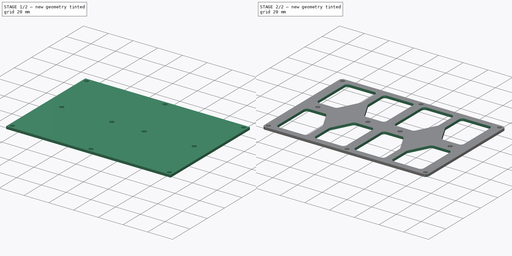
[diagram: build sequence overview — one tinted view per stage of 2, left to right]
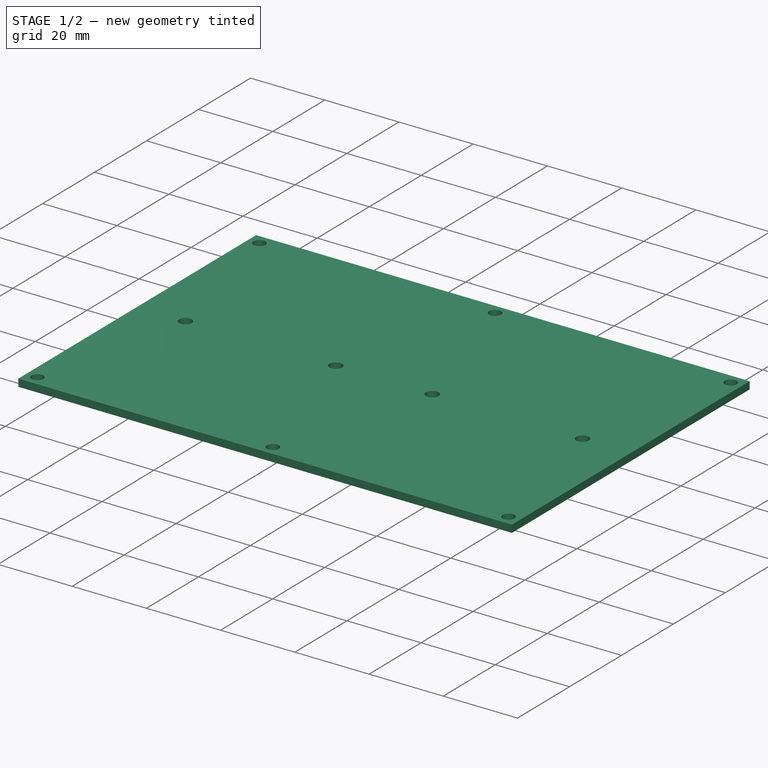
[diagram: stage 1 of 2 — iso view after this stage's code; geometry added in this stage tinted green]
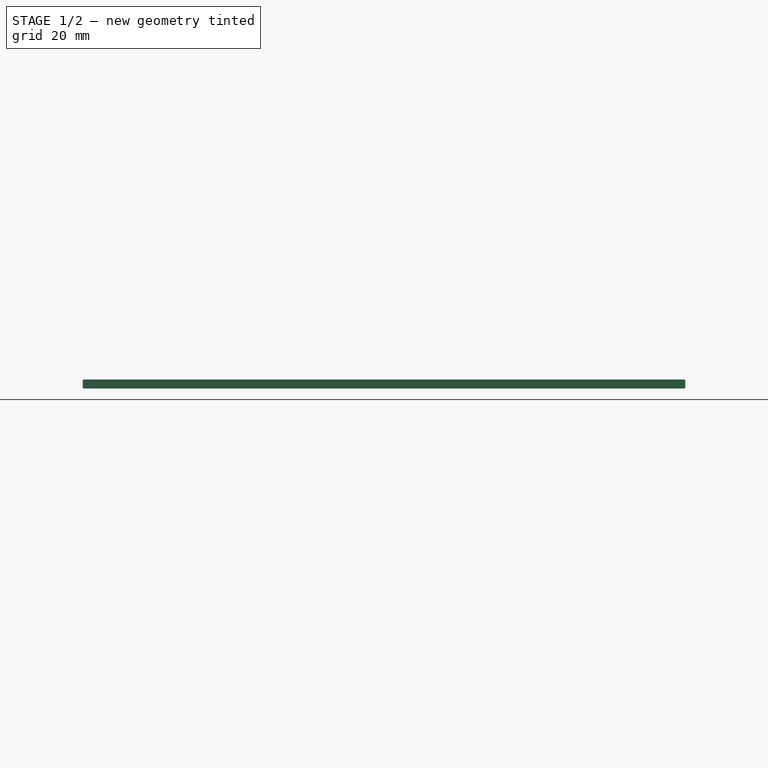
[diagram: stage 1 of 2 — front view after this stage's code; geometry added in this stage tinted green]
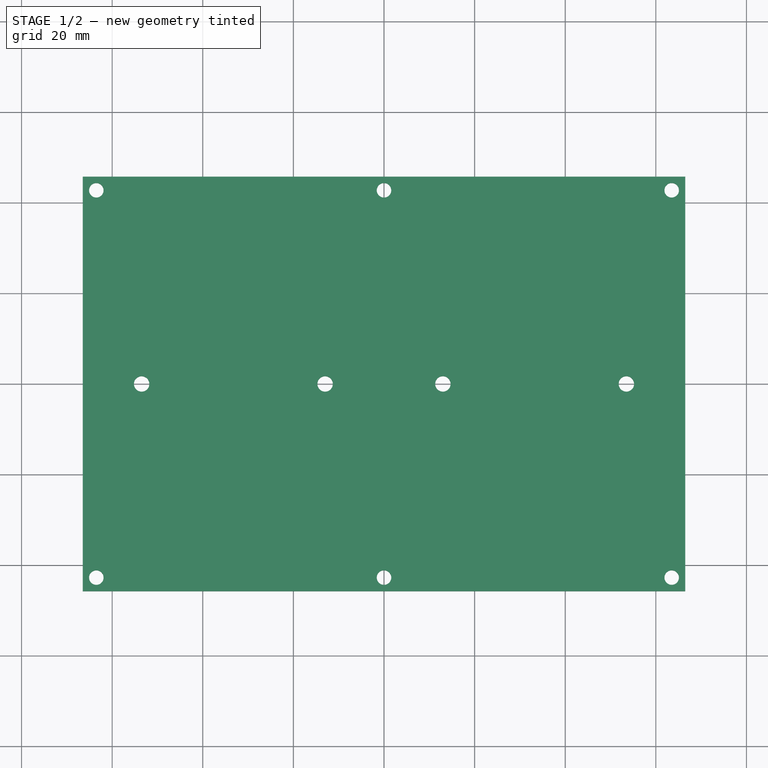
[diagram: stage 1 of 2 — top view after this stage's code; geometry added in this stage tinted green]
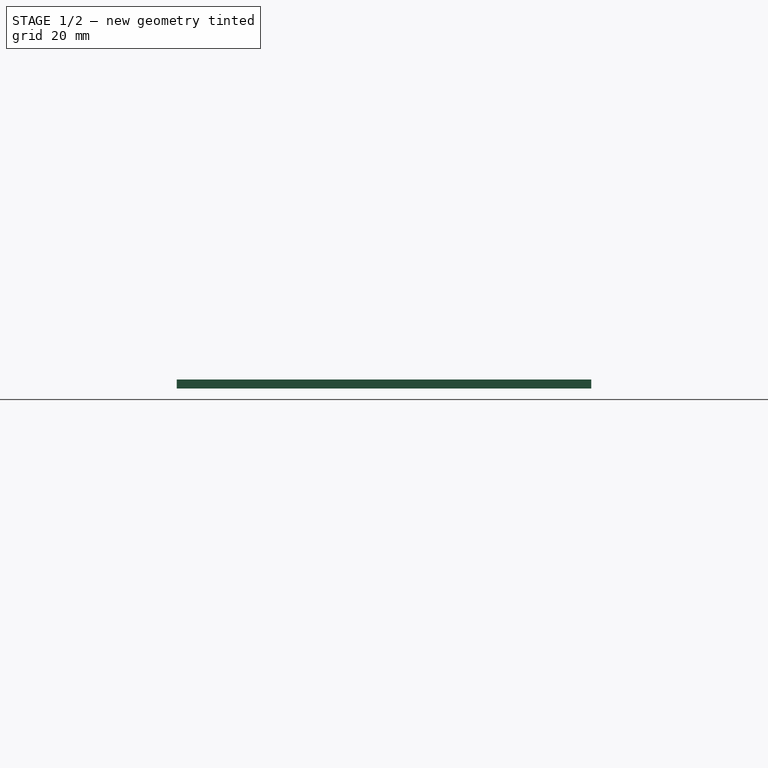
[diagram: stage 1 of 2 — right view after this stage's code; geometry added in this stage tinted green]
FCSTD DOCUMENT  (FreeCAD 1.0R39109 (Git))
Label: bathold_support
License: All rights reserved
LicenseURL: http://en.wikipedia.org/wiki/All_rights_reserved
objects: Sketcher::SketchObject×3, PartDesign::Pocket×2, PartDesign::Pad×1, PartDesign::Fillet×1, PartDesign::Body×1
note: 19 computed .brp shape members not serialized (recipe doc carries the construction recipe); baked Part::Feature solids carry a one-line shape summary decoded from their .brp

FEATURE [Sketcher::SketchObject] Sketch
  ArcFitTolerance = 1e-06
  AttachmentSupport = -> [XY_Plane]
  FullyConstrained = true
  MakeInternals = false
  MapMode = 5
  sketch-geometry (11):
    g0: LineSegment StartX=-66.5 StartY=45.75 StartZ=0 EndX=-66.5 EndY=-45.75 EndZ=0
    g1: LineSegment StartX=-66.5 StartY=-45.75 StartZ=0 EndX=66.5 EndY=-45.75 EndZ=0
    g2: LineSegment StartX=66.5 StartY=-45.75 StartZ=0 EndX=66.5 EndY=45.75 EndZ=0
    g3: LineSegment StartX=66.5 StartY=45.75 StartZ=0 EndX=-66.5 EndY=45.75 EndZ=0
    g4: GeomPoint [constr] X=0 Y=0 Z=0
    g5: Circle CenterX=-63.5 CenterY=42.75 CenterZ=0 NormalX=0 NormalY=0 NormalZ=1 AngleXU=0 Radius=1.6
    g6: Circle CenterX=0 CenterY=42.75 CenterZ=0 NormalX=0 NormalY=0 NormalZ=1 AngleXU=0 Radius=1.6
    g7: Circle CenterX=63.5 CenterY=42.75 CenterZ=0 NormalX=0 NormalY=0 NormalZ=1 AngleXU=0 Radius=1.6
    g8: Circle CenterX=0 CenterY=-42.75 CenterZ=0 NormalX=0 NormalY=0 NormalZ=1 AngleXU=0 Radius=1.6
    g9: Circle CenterX=63.5 CenterY=-42.75 CenterZ=0 NormalX=0 NormalY=0 NormalZ=1 AngleXU=0 Radius=1.6
    g10: Circle CenterX=-63.5 CenterY=-42.75 CenterZ=0 NormalX=0 NormalY=0 NormalZ=1 AngleXU=0 Radius=1.6
  constraints (27):
    c: Coincident(g0,g1)
    c: Coincident(g1,g2)
    c: Coincident(g2,g3)
    c: Coincident(g3,g0)
    c: Vertical(g0)
    c: Vertical(g2)
    c: Horizontal(g1)
    c: Horizontal(g3)
    c: Symmetric(g2,g0,g4)
    c: Coincident(g4,g-1)
    c: DistanceX(g3,g3) = 133
    c: DistanceY(g2,g2) = 91.5
    c: PointOnObject(g6,g-2)
    c: Horizontal(g7,g6)
    c: Equal(g5,g6)
    c: Equal(g6,g7)
    c: Radius(g7) = 1.6
    c: DistanceY(g7,g2) = 3
    c: DistanceX(g7,g2) = 3
    c: Symmetric(g7,g5,g6)
    c: Equal(g8,g9)
    c: Radius(g9) = 1.6
    c: Equal(g10,g8)
    c: Symmetric(g10,g5,g-1)
    c: Symmetric(g9,g7,g-1)
    c: Horizontal(g8,g9)
    c: PointOnObject(g8,g-2)
FEATURE [PartDesign::Pad] Pad  label="BasePad"
  Direction = (0,0,1)
  Length = 2
  Length2 = 10
  Profile = -> Sketch
  ReferenceAxis = -> Sketch [N_Axis]
  Refine = true
  Suppressed = false
  Type = 0
FEATURE [Sketcher::SketchObject] Sketch001
  ArcFitTolerance = 1e-06
  AttachmentSupport = -> [Pad]
  ExternalGeometry = -> [Pad]
  FullyConstrained = true
  MakeInternals = false
  MapMode = 5
  Placement = pos=(0,0,2) rot=(0,0,1;0rad)
  sketch-geometry (20):
    g0: LineSegment [constr] StartX=2.5 StartY=35.75 StartZ=0 EndX=2.5 EndY=-35.75 EndZ=0
    g1: LineSegment [constr] StartX=2.5 StartY=-35.75 StartZ=0 EndX=64 EndY=-35.75 EndZ=0
    g2: LineSegment [constr] StartX=64 StartY=-35.75 StartZ=0 EndX=64 EndY=35.75 EndZ=0
    g3: LineSegment [constr] StartX=64 StartY=35.75 StartZ=0 EndX=2.5 EndY=35.75 EndZ=0
    g4: GeomPoint [constr] X=33.25 Y=0 Z=0
    g5: Circle CenterX=13 CenterY=0 CenterZ=0 NormalX=0 NormalY=0 NormalZ=1 AngleXU=0 Radius=1.7
    g6: Circle CenterX=53.5 CenterY=0 CenterZ=0 NormalX=0 NormalY=0 NormalZ=1 AngleXU=0 Radius=1.7
    g7: GeomPoint [constr] X=6.3e-15 Y=45.75 Z=0
    g8: LineSegment [constr] StartX=6.3e-15 StartY=45.75 StartZ=0 EndX=66.5 EndY=45.75 EndZ=0
    g9: GeomPoint X=33.25 Y=45.75 Z=0
    g10: LineSegment [constr] StartX=-2.5 StartY=35.75 StartZ=0 EndX=-2.5 EndY=-35.75 EndZ=0
    g11: LineSegment [constr] StartX=-2.5 StartY=-35.75 StartZ=0 EndX=-64 EndY=-35.75 EndZ=0
    g12: LineSegment [constr] StartX=-64 StartY=-35.75 StartZ=0 EndX=-64 EndY=35.75 EndZ=0
    g13: LineSegment [constr] StartX=-64 StartY=35.75 StartZ=0 EndX=-2.5 EndY=35.75 EndZ=0
    g14: GeomPoint [constr] X=-33.25 Y=1.318e-13 Z=0
    g15: Circle CenterX=-13 CenterY=0 CenterZ=0 NormalX=0 NormalY=0 NormalZ=1 AngleXU=0 Radius=1.7
    g16: Circle CenterX=-53.5 CenterY=0 CenterZ=0 NormalX=0 NormalY=0 NormalZ=1 AngleXU=0 Radius=1.7
    g17: GeomPoint [constr] X=-2.6e-15 Y=45.75 Z=0
    g18: LineSegment [constr] StartX=-2.6e-15 StartY=45.75 StartZ=0 EndX=-66.5 EndY=45.75 EndZ=0
    g19: GeomPoint X=-33.25 Y=45.75 Z=0
  constraints (43):
    c: Coincident(g0,g1)
    c: Coincident(g1,g2)
    c: Coincident(g2,g3)
    c: Coincident(g3,g0)
    c: Vertical(g0)
    c: Vertical(g2)
    c: Horizontal(g1)
    c: Horizontal(g3)
    c: Symmetric(g2,g0,g4)
    c: PointOnObject(g4,g-1)
    c: PointOnObject(g6,g-1)
    c: PointOnObject(g5,g-1)
    c: Equal(g5,g6)
    c: Radius(g5) = 1.7
    c: DistanceX(g6,g2) = 10.5
    c: DistanceX(g0,g5) = 10.5
    c: DistanceX(g3,g3) = 61.5
    c: DistanceY(g2,g2) = 71.5
    c: Symmetric(g-3,g-3,g7)
    c: Coincident(g8,g7)
    c: Coincident(g8,g-3)
    c: Symmetric(g8,g8,g9)
    c: Vertical(g9,g4)
    c: Coincident(g10,g11)
    c: Coincident(g11,g12)
    c: Coincident(g12,g13)
    c: Coincident(g13,g10)
    c: Vertical(g10)
    c: Vertical(g12)
    c: Horizontal(g11)
    c: Horizontal(g13)
    c: Symmetric(g12,g10,g14)
    c: Equal(g15,g16)
    c: Radius(g15) = 1.7
    c: Coincident(g18,g17)
    c: Symmetric(g18,g18,g19)
    c: Symmetric(g14,g4,g-1)
    c: Symmetric(g16,g6,g-1)
    c: Coincident(g-3,g18)
    c: Horizontal(g18)
    c: Equal(g18,g8)
    c: Symmetric(g12,g1,g-1)
    c: Symmetric(g15,g5,g-1)
FEATURE [PartDesign::Pocket] Pocket  label="ScrewPocket"
  BaseFeature = -> Pad
  Direction = (0,0,-1)
  Length = 5
  Length2 = 5
  Profile = -> Sketch001
  ReferenceAxis = -> Sketch001 [N_Axis]
  Refine = true
  Suppressed = false
  Type = 1
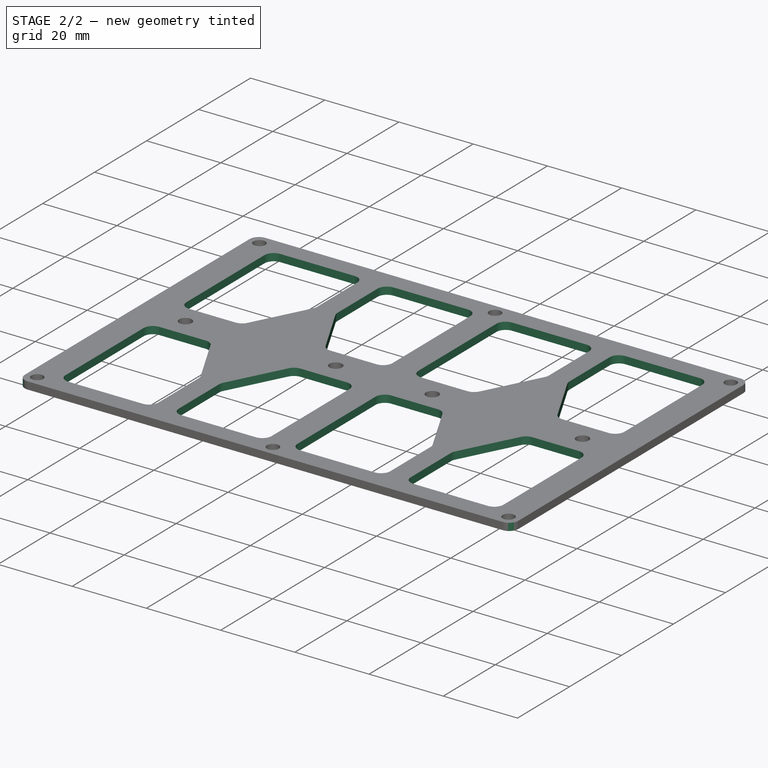
[diagram: stage 2 of 2 — iso view after this stage's code; geometry added in this stage tinted green]
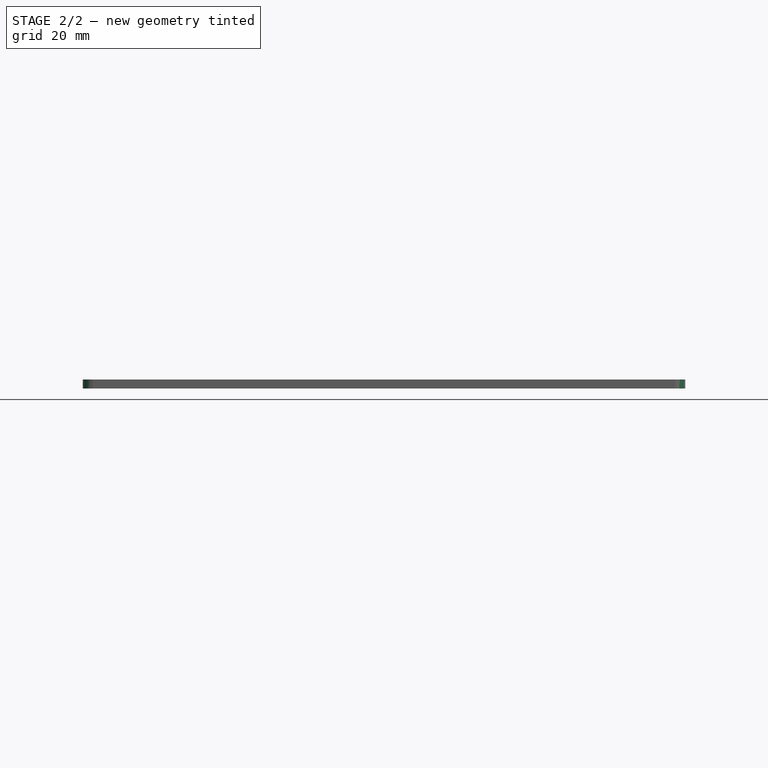
[diagram: stage 2 of 2 — front view after this stage's code; geometry added in this stage tinted green]
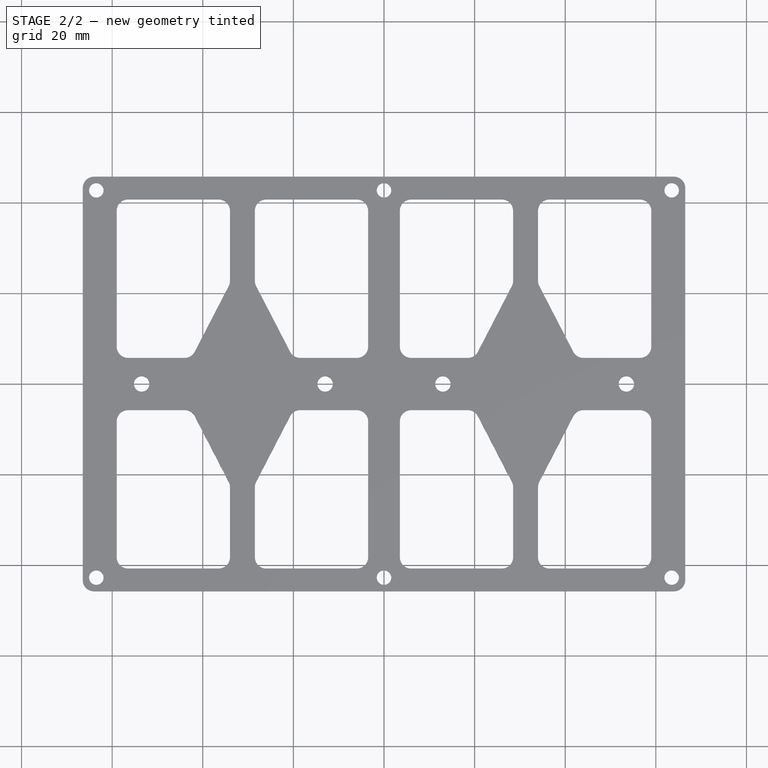
[diagram: stage 2 of 2 — top view after this stage's code; geometry added in this stage tinted green]
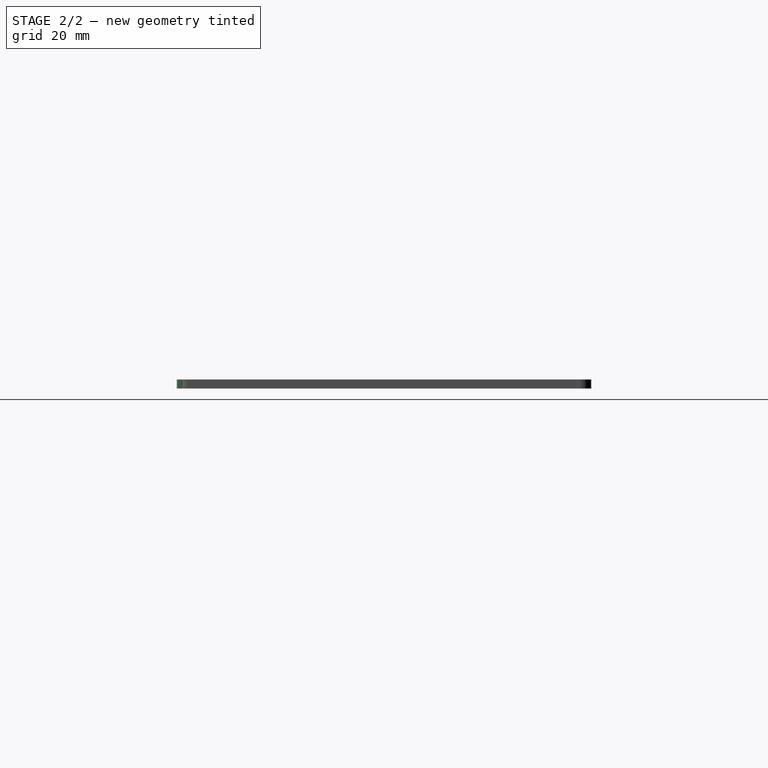
[diagram: stage 2 of 2 — right view after this stage's code; geometry added in this stage tinted green]
FEATURE [Sketcher::SketchObject] Sketch002
  ArcFitTolerance = 1e-06
  AttachmentSupport = -> [Pocket]
  ExternalGeometry = -> [Pocket]
  FullyConstrained = false
  MakeInternals = false
  MapMode = 5
  Placement = pos=(0,0,2) rot=(0,0,1;0rad)
  sketch-geometry (136):
    g0: LineSegment StartX=-59 StartY=38.25 StartZ=0 EndX=-59 EndY=8.25 EndZ=0
    g1: LineSegment StartX=-56.5 StartY=5.75 StartZ=0 EndX=-44 EndY=5.75 EndZ=0
    g2: LineSegment StartX=-41.7795 StartY=7.10144 StartZ=0 EndX=-34.2795 EndY=21.6014 EndZ=0
    g3: LineSegment StartX=-34 StartY=22.75 StartZ=0 EndX=-34 EndY=38.25 EndZ=0
    g4: LineSegment StartX=-36.5 StartY=40.75 StartZ=0 EndX=-56.5 EndY=40.75 EndZ=0
    g5: LineSegment StartX=-28.5 StartY=38.25 StartZ=0 EndX=-28.5 EndY=22.75 EndZ=0
    g6: LineSegment StartX=-28.2205 StartY=21.6014 StartZ=0 EndX=-20.7205 EndY=7.10144 EndZ=0
    g7: LineSegment StartX=-18.5 StartY=5.75 StartZ=0 EndX=-6 EndY=5.75 EndZ=0
    g8: LineSegment StartX=-3.5 StartY=8.25 StartZ=0 EndX=-3.5 EndY=38.25 EndZ=0
    g9: LineSegment StartX=-6 StartY=40.75 StartZ=0 EndX=-26 EndY=40.75 EndZ=0
    g10: ArcOfCircle CenterX=-56.5 CenterY=8.25 CenterZ=0 NormalX=0 NormalY=0 NormalZ=1 AngleXU=0 Radius=2.5 StartAngle=3.14159 EndAngle=4.71239
    g11: GeomPoint [constr] X=-59 Y=5.75 Z=0
    g12: ArcOfCircle CenterX=-44 CenterY=8.25 CenterZ=0 NormalX=0 NormalY=0 NormalZ=1 AngleXU=0 Radius=2.5 StartAngle=4.71239 EndAngle=5.80584
    g13: GeomPoint [constr] X=-42.4785 Y=5.75 Z=0
    g14: ArcOfCircle CenterX=-36.5 CenterY=22.75 CenterZ=0 NormalX=0 NormalY=0 NormalZ=1 AngleXU=0 Radius=2.5 StartAngle=5.80584 EndAngle=6.28319
    g15: GeomPoint [constr] X=-34 Y=22.1417 Z=0
    g16: ArcOfCircle CenterX=-36.5 CenterY=38.25 CenterZ=0 NormalX=0 NormalY=0 NormalZ=1 AngleXU=0 Radius=2.5 StartAngle=0 EndAngle=1.5708
    g17: GeomPoint [constr] X=-34 Y=40.75 Z=0
    g18: ArcOfCircle CenterX=-56.5 CenterY=38.25 CenterZ=0 NormalX=0 NormalY=0 NormalZ=1 AngleXU=0 Radius=2.5 StartAngle=1.5708 EndAngle=3.14159
    g19: GeomPoint [constr] X=-59 Y=40.75 Z=0
    g20: ArcOfCircle CenterX=-26 CenterY=38.25 CenterZ=0 NormalX=0 NormalY=0 NormalZ=1 AngleXU=0 Radius=2.5 StartAngle=1.5708 EndAngle=3.14159
    g21: GeomPoint [constr] X=-28.5 Y=40.75 Z=0
    g22: ArcOfCircle CenterX=-26 CenterY=22.75 CenterZ=0 NormalX=0 NormalY=0 NormalZ=1 AngleXU=0 Radius=2.5 StartAngle=3.14159 EndAngle=3.61894
    g23: GeomPoint [constr] X=-28.5 Y=22.1417 Z=0
    g24: ArcOfCircle CenterX=-6 CenterY=38.25 CenterZ=0 NormalX=0 NormalY=0 NormalZ=1 AngleXU=0 Radius=2.5 StartAngle=7e-16 EndAngle=1.5708
    g25: GeomPoint [constr] X=-3.5 Y=40.75 Z=0
    g26: ArcOfCircle CenterX=-18.5 CenterY=8.25 CenterZ=0 NormalX=0 NormalY=0 NormalZ=1 AngleXU=0 Radius=2.5 StartAngle=3.61894 EndAngle=4.71239
    g27: GeomPoint [constr] X=-20.0215 Y=5.75 Z=0
    g28: ArcOfCircle CenterX=-6 CenterY=8.25 CenterZ=0 NormalX=0 NormalY=0 NormalZ=1 AngleXU=0 Radius=2.5 StartAngle=4.71239 EndAngle=6.28319
    g29: GeomPoint [constr] X=-3.5 Y=5.75 Z=0
    g30: LineSegment [constr] StartX=-59 StartY=38.25 StartZ=0 EndX=-34 EndY=38.25 EndZ=0
    g31: LineSegment [constr] StartX=-28.5 StartY=38.25 StartZ=0 EndX=-3.5 EndY=38.25 EndZ=0
    g32: LineSegment [constr] StartX=-56.5 StartY=40.75 StartZ=0 EndX=-56.5 EndY=5.75 EndZ=0
    g33: LineSegment [constr] StartX=-6 StartY=5.75 StartZ=0 EndX=-6 EndY=40.75 EndZ=0
    g34: LineSegment StartX=59 StartY=-38.25 StartZ=0 EndX=59 EndY=-8.25 EndZ=0
    g35: LineSegment StartX=56.5 StartY=-5.75 StartZ=0 EndX=44 EndY=-5.75 EndZ=0
    g36: LineSegment StartX=41.7795 StartY=-7.10144 StartZ=0 EndX=34.2795 EndY=-21.6014 EndZ=0
    g37: LineSegment StartX=34 StartY=-22.75 StartZ=0 EndX=34 EndY=-38.25 EndZ=0
    g38: LineSegment StartX=36.5 StartY=-40.75 StartZ=0 EndX=56.5 EndY=-40.75 EndZ=0
    g39: LineSegment StartX=28.5 StartY=-38.25 StartZ=0 EndX=28.5 EndY=-22.75 EndZ=0
    g40: LineSegment StartX=28.2205 StartY=-21.6014 StartZ=0 EndX=20.7205 EndY=-7.10144 EndZ=0
    g41: LineSegment StartX=18.5 StartY=-5.75 StartZ=0 EndX=6 EndY=-5.75 EndZ=0
    g42: LineSegment StartX=3.5 StartY=-8.25 StartZ=0 EndX=3.5 EndY=-38.25 EndZ=0
    g43: LineSegment StartX=6 StartY=-40.75 StartZ=0 EndX=26 EndY=-40.75 EndZ=0
    g44: ArcOfCircle CenterX=56.5 CenterY=-8.25 CenterZ=0 NormalX=0 NormalY=0 NormalZ=1 AngleXU=0 Radius=2.5 StartAngle=0 EndAngle=1.5708
    g45: GeomPoint [constr] X=59 Y=-5.75 Z=0
    g46: ArcOfCircle CenterX=44 CenterY=-8.25 CenterZ=0 NormalX=0 NormalY=0 NormalZ=1 AngleXU=0 Radius=2.5 StartAngle=1.5708 EndAngle=2.66425
    g47: GeomPoint [constr] X=42.4785 Y=-5.75 Z=0
    g48: ArcOfCircle CenterX=36.5 CenterY=-22.75 CenterZ=0 NormalX=0 NormalY=0 NormalZ=1 AngleXU=0 Radius=2.5 StartAngle=2.66425 EndAngle=3.14159
    g49: GeomPoint [constr] X=34 Y=-22.1417 Z=0
    g50: ArcOfCircle CenterX=36.5 CenterY=-38.25 CenterZ=0 NormalX=0 NormalY=0 NormalZ=1 AngleXU=0 Radius=2.5 StartAngle=3.14159 EndAngle=4.71239
    g51: GeomPoint [constr] X=34 Y=-40.75 Z=0
    g52: ArcOfCircle CenterX=56.5 CenterY=-38.25 CenterZ=0 NormalX=0 NormalY=0 NormalZ=1 AngleXU=0 Radius=2.5 StartAngle=4.71239 EndAngle=6.28319
    g53: GeomPoint [constr] X=59 Y=-40.75 Z=0
    g54: ArcOfCircle CenterX=26 CenterY=-38.25 CenterZ=0 NormalX=0 NormalY=0 NormalZ=1 AngleXU=0 Radius=2.5 StartAngle=4.71239 EndAngle=6.28319
    g55: GeomPoint [constr] X=28.5 Y=-40.75 Z=0
    g56: ArcOfCircle CenterX=26 CenterY=-22.75 CenterZ=0 NormalX=0 NormalY=0 NormalZ=1 AngleXU=0 Radius=2.5 StartAngle=0 EndAngle=0.477345
    g57: GeomPoint [constr] X=28.5 Y=-22.1417 Z=0
    g58: ArcOfCircle CenterX=6 CenterY=-38.25 CenterZ=0 NormalX=0 NormalY=0 NormalZ=1 AngleXU=0 Radius=2.5 StartAngle=3.14159 EndAngle=4.71239
    g59: GeomPoint [constr] X=3.5 Y=-40.75 Z=0
    g60: ArcOfCircle CenterX=18.5 CenterY=-8.25 CenterZ=0 NormalX=0 NormalY=0 NormalZ=1 AngleXU=0 Radius=2.5 StartAngle=0.477345 EndAngle=1.5708
    g61: GeomPoint [constr] X=20.0215 Y=-5.75 Z=0
    g62: ArcOfCircle CenterX=6 CenterY=-8.25 CenterZ=0 NormalX=0 NormalY=0 NormalZ=1 AngleXU=0 Radius=2.5 StartAngle=1.5708 EndAngle=3.14159
    g63: GeomPoint [constr] X=3.5 Y=-5.75 Z=0
    g64: LineSegment [constr] StartX=59 StartY=-38.25 StartZ=0 EndX=34 EndY=-38.25 EndZ=0
    g65: LineSegment [constr] StartX=28.5 StartY=-38.25 StartZ=0 EndX=3.5 EndY=-38.25 EndZ=0
    g66: LineSegment [constr] StartX=56.5 StartY=-40.75 StartZ=0 EndX=56.5 EndY=-5.75 EndZ=0
    g67: LineSegment [constr] StartX=6 StartY=-5.75 StartZ=0 EndX=6 EndY=-40.75 EndZ=0
    g68: LineSegment StartX=59 StartY=38.25 StartZ=0 EndX=59 EndY=8.25 EndZ=0
    g69: LineSegment StartX=56.5 StartY=5.75 StartZ=0 EndX=44 EndY=5.75 EndZ=0
    g70: LineSegment StartX=41.7795 StartY=7.10144 StartZ=0 EndX=34.2795 EndY=21.6014 EndZ=0
    g71: LineSegment StartX=34 StartY=22.75 StartZ=0 EndX=34 EndY=38.25 EndZ=0
    g72: LineSegment StartX=36.5 StartY=40.75 StartZ=0 EndX=56.5 EndY=40.75 EndZ=0
    g73: LineSegment StartX=28.5 StartY=38.25 StartZ=0 EndX=28.5 EndY=22.75 EndZ=0
    g74: LineSegment StartX=28.2205 StartY=21.6014 StartZ=0 EndX=20.7205 EndY=7.10144 EndZ=0
    g75: LineSegment StartX=18.5 StartY=5.75 StartZ=0 EndX=6 EndY=5.75 EndZ=0
    g76: LineSegment StartX=3.5 StartY=8.25 StartZ=0 EndX=3.5 EndY=38.25 EndZ=0
    g77: LineSegment StartX=6 StartY=40.75 StartZ=0 EndX=26 EndY=40.75 EndZ=0
    g78: ArcOfCircle CenterX=56.5 CenterY=8.25 CenterZ=0 NormalX=0 NormalY=0 NormalZ=1 AngleXU=0 Radius=2.5 StartAngle=4.71239 EndAngle=6.28319
    g79: GeomPoint [constr] X=59 Y=5.75 Z=0
    g80: ArcOfCircle CenterX=44 CenterY=8.25 CenterZ=0 NormalX=0 NormalY=0 NormalZ=1 AngleXU=0 Radius=2.5 StartAngle=3.61894 EndAngle=4.71239
    g81: GeomPoint [constr] X=42.4785 Y=5.75 Z=0
    g82: ArcOfCircle CenterX=36.5 CenterY=22.75 CenterZ=0 NormalX=0 NormalY=0 NormalZ=1 AngleXU=0 Radius=2.5 StartAngle=3.14159 EndAngle=3.61894
    g83: GeomPoint [constr] X=34 Y=22.1417 Z=0
    g84: ArcOfCircle CenterX=36.5 CenterY=38.25 CenterZ=0 NormalX=0 NormalY=0 NormalZ=1 AngleXU=0 Radius=2.5 StartAngle=1.5708 EndAngle=3.14159
    g85: GeomPoint [constr] X=34 Y=40.75 Z=0
    g86: ArcOfCircle CenterX=56.5 CenterY=38.25 CenterZ=0 NormalX=0 NormalY=0 NormalZ=1 AngleXU=0 Radius=2.5 StartAngle=0 EndAngle=1.5708
    g87: GeomPoint [constr] X=59 Y=40.75 Z=0
    g88: ArcOfCircle CenterX=26 CenterY=38.25 CenterZ=0 NormalX=0 NormalY=0 NormalZ=1 AngleXU=0 Radius=2.5 StartAngle=0 EndAngle=1.5708
    g89: GeomPoint [constr] X=28.5 Y=40.75 Z=0
    g90: ArcOfCircle CenterX=26 CenterY=22.75 CenterZ=0 NormalX=0 NormalY=0 NormalZ=1 AngleXU=0 Radius=2.5 StartAngle=5.80584 EndAngle=6.28319
    g91: GeomPoint [constr] X=28.5 Y=22.1417 Z=0
    g92: ArcOfCircle CenterX=6 CenterY=38.25 CenterZ=0 NormalX=0 NormalY=0 NormalZ=1 AngleXU=0 Radius=2.5 StartAngle=1.5708 EndAngle=3.14159
    g93: GeomPoint [constr] X=3.5 Y=40.75 Z=0
    g94: ArcOfCircle CenterX=18.5 CenterY=8.25 CenterZ=0 NormalX=0 NormalY=0 NormalZ=1 AngleXU=0 Radius=2.5 StartAngle=4.71239 EndAngle=5.80584
    g95: GeomPoint [constr] X=20.0215 Y=5.75 Z=0
    g96: ArcOfCircle CenterX=6 CenterY=8.25 CenterZ=0 NormalX=0 NormalY=0 NormalZ=1 AngleXU=0 Radius=2.5 StartAngle=3.14159 EndAngle=4.71239
    g97: GeomPoint [constr] X=3.5 Y=5.75 Z=0
    g98: LineSegment [constr] StartX=59 StartY=38.25 StartZ=0 EndX=34 EndY=38.25 EndZ=0
    g99: LineSegment [constr] StartX=28.5 StartY=38.25 StartZ=0 EndX=3.5 EndY=38.25 EndZ=0
    g100: LineSegment [constr] StartX=56.5 StartY=40.75 StartZ=0 EndX=56.5 EndY=5.75 EndZ=0
    g101: LineSegment [constr] StartX=6 StartY=5.75 StartZ=0 EndX=6 EndY=40.75 EndZ=0
    g102: LineSegment StartX=-59 StartY=-38.25 StartZ=0 EndX=-59 EndY=-8.25 EndZ=0
    g103: LineSegment StartX=-56.5 StartY=-5.75 StartZ=0 EndX=-44 EndY=-5.75 EndZ=0
    g104: LineSegment StartX=-41.7795 StartY=-7.10144 StartZ=0 EndX=-34.2795 EndY=-21.6014 EndZ=0
    g105: LineSegment StartX=-34 StartY=-22.75 StartZ=0 EndX=-34 EndY=-38.25 EndZ=0
    g106: LineSegment StartX=-36.5 StartY=-40.75 StartZ=0 EndX=-56.5 EndY=-40.75 EndZ=0
    g107: LineSegment StartX=-28.5 StartY=-38.25 StartZ=0 EndX=-28.5 EndY=-22.75 EndZ=0
    g108: LineSegment StartX=-28.2205 StartY=-21.6014 StartZ=0 EndX=-20.7205 EndY=-7.10144 EndZ=0
    g109: LineSegment StartX=-18.5 StartY=-5.75 StartZ=0 EndX=-6 EndY=-5.75 EndZ=0
    g110: LineSegment StartX=-3.5 StartY=-8.25 StartZ=0 EndX=-3.5 EndY=-38.25 EndZ=0
    g111: LineSegment StartX=-6 StartY=-40.75 StartZ=0 EndX=-26 EndY=-40.75 EndZ=0
    g112: ArcOfCircle CenterX=-56.5 CenterY=-8.25 CenterZ=0 NormalX=0 NormalY=0 NormalZ=1 AngleXU=0 Radius=2.5 StartAngle=1.5708 EndAngle=3.14159
    g113: GeomPoint [constr] X=-59 Y=-5.75 Z=0
    g114: ArcOfCircle CenterX=-44 CenterY=-8.25 CenterZ=0 NormalX=0 NormalY=0 NormalZ=1 AngleXU=0 Radius=2.5 StartAngle=0.477345 EndAngle=1.5708
    g115: GeomPoint [constr] X=-42.4785 Y=-5.75 Z=0
    g116: ArcOfCircle CenterX=-36.5 CenterY=-22.75 CenterZ=0 NormalX=0 NormalY=0 NormalZ=1 AngleXU=0 Radius=2.5 StartAngle=0 EndAngle=0.477345
    g117: GeomPoint [constr] X=-34 Y=-22.1417 Z=0
    g118: ArcOfCircle CenterX=-36.5 CenterY=-38.25 CenterZ=0 NormalX=0 NormalY=0 NormalZ=1 AngleXU=0 Radius=2.5 StartAngle=4.71239 EndAngle=6.28319
    g119: GeomPoint [constr] X=-34 Y=-40.75 Z=0
    g120: ArcOfCircle CenterX=-56.5 CenterY=-38.25 CenterZ=0 NormalX=0 NormalY=0 NormalZ=1 AngleXU=0 Radius=2.5 StartAngle=3.14159 EndAngle=4.71239
    g121: GeomPoint [constr] X=-59 Y=-40.75 Z=0
    g122: ArcOfCircle CenterX=-26 CenterY=-38.25 CenterZ=0 NormalX=0 NormalY=0 NormalZ=1 AngleXU=0 Radius=2.5 StartAngle=3.14159 EndAngle=4.71239
    g123: GeomPoint [constr] X=-28.5 Y=-40.75 Z=0
    g124: ArcOfCircle CenterX=-26 CenterY=-22.75 CenterZ=0 NormalX=0 NormalY=0 NormalZ=1 AngleXU=0 Radius=2.5 StartAngle=2.66425 EndAngle=3.14159
    g125: GeomPoint [constr] X=-28.5 Y=-22.1417 Z=0
    g126: ArcOfCircle CenterX=-6 CenterY=-38.25 CenterZ=0 NormalX=0 NormalY=0 NormalZ=1 AngleXU=0 Radius=2.5 StartAngle=4.71239 EndAngle=6.28319
    g127: GeomPoint [constr] X=-3.5 Y=-40.75 Z=0
    g128: ArcOfCircle CenterX=-18.5 CenterY=-8.25 CenterZ=0 NormalX=0 NormalY=0 NormalZ=1 AngleXU=0 Radius=2.5 StartAngle=1.5708 EndAngle=2.66425
    g129: GeomPoint [constr] X=-20.0215 Y=-5.75 Z=0
    g130: ArcOfCircle CenterX=-6 CenterY=-8.25 CenterZ=0 NormalX=0 NormalY=0 NormalZ=1 AngleXU=0 Radius=2.5 StartAngle=0 EndAngle=1.5708
    g131: GeomPoint [constr] X=-3.5 Y=-5.75 Z=0
    g132: LineSegment [constr] StartX=-59 StartY=-38.25 StartZ=0 EndX=-34 EndY=-38.25 EndZ=0
    g133: LineSegment [constr] StartX=-28.5 StartY=-38.25 StartZ=0 EndX=-3.5 EndY=-38.25 EndZ=0
    g134: LineSegment [constr] StartX=-56.5 StartY=-40.75 StartZ=0 EndX=-56.5 EndY=-5.75 EndZ=0
    g135: LineSegment [constr] StartX=-6 StartY=-5.75 StartZ=0 EndX=-6 EndY=-40.75 EndZ=0
  constraints (282):
    c: Vertical(g0)
    c: Vertical(g3)
    c: Horizontal(g4)
    c: Vertical(g5)
    c: Vertical(g8)
    c: Horizontal(g9)
    c: Horizontal(g1)
    c: Horizontal(g7)
    c: PointOnObject(g11,g0)
    c: PointOnObject(g11,g1)
    c: Tangent(g0,g10) = -1.5708
    c: Tangent(g1,g10) = -1.5708
    c: PointOnObject(g13,g1)
    c: PointOnObject(g13,g2)
    c: Tangent(g1,g12) = -1.5708
    c: Tangent(g2,g12) = -1.5708
    c: PointOnObject(g15,g2)
    c: PointOnObject(g15,g3)
    c: Tangent(g2,g14) = -1.5708
    c: Tangent(g3,g14) = -1.5708
    c: PointOnObject(g17,g3)
    c: PointOnObject(g17,g4)
    c: Tangent(g3,g16) = -1.5708
    c: Tangent(g4,g16) = -1.5708
    c: PointOnObject(g19,g0)
    c: PointOnObject(g19,g4)
    c: Tangent(g0,g18) = -1.5708
    c: Tangent(g4,g18) = -1.5708
    c: PointOnObject(g21,g5)
    c: PointOnObject(g21,g9)
    c: Tangent(g5,g20) = -1.5708
    c: Tangent(g9,g20) = -1.5708
    c: PointOnObject(g23,g5)
    c: PointOnObject(g23,g6)
    c: Tangent(g5,g22) = -1.5708
    c: Tangent(g6,g22) = -1.5708
    c: PointOnObject(g25,g8)
    c: PointOnObject(g25,g9)
    c: Tangent(g8,g24) = -1.5708
    c: Tangent(g9,g24) = -1.5708
    c: PointOnObject(g27,g6)
    c: PointOnObject(g27,g7)
    c: Tangent(g6,g26) = -1.5708
    c: Tangent(g7,g26) = -1.5708
    c: PointOnObject(g29,g7)
    c: PointOnObject(g29,g8)
    c: Tangent(g7,g28) = -1.5708
    c: Tangent(g8,g28) = -1.5708
    c: Horizontal(g27,g13)
    c: Horizontal(g22,g14)
    c: Horizontal(g20,g16)
    c: Equal(g24,g20)
    c: Equal(g20,g16)
    c: Equal(g16,g18)
    c: Equal(g18,g10)
    c: Equal(g10,g12)
    c: Equal(g12,g14)
    c: Equal(g14,g22)
    c: Equal(g22,g26)
    c: Equal(g26,g28)
    c: Radius(g18) = 2.5
    c: DistanceY(g1,g4) = 35
    c: DistanceY(g4,g-3) = 5
    c: DistanceX(g-3,g0) = 7.5
    c: Coincident(g30,g0)
    c: Coincident(g30,g3)
    c: Coincident(g31,g5)
    c: Coincident(g31,g8)
    c: Equal(g31,g30)
    c: Coincident(g32,g4)
    c: Coincident(g32,g1)
    c: Coincident(g33,g7)
    c: Coincident(g33,g9)
    c: DistanceX(g30,g30) = 25
    c: DistanceX(g8,g-1) = 3.5
    c: Equal(g6,g2)
    c: DistanceY(g7,g5) = 17
    c: DistanceX(g1,g3) = 10
    c: Vertical(g34)
    c: Vertical(g37)
    c: Horizontal(g38)
    c: Vertical(g39)
    c: Vertical(g42)
    c: Horizontal(g43)
    c: Horizontal(g35)
    c: Horizontal(g41)
    c: PointOnObject(g45,g34)
    c: PointOnObject(g45,g35)
    c: Tangent(g34,g44) = -1.5708
    c: Tangent(g35,g44) = -1.5708
    c: PointOnObject(g47,g35)
    c: PointOnObject(g47,g36)
    c: Tangent(g35,g46) = -1.5708
    c: Tangent(g36,g46) = -1.5708
    c: PointOnObject(g49,g36)
    c: PointOnObject(g49,g37)
    c: Tangent(g36,g48) = -1.5708
    c: Tangent(g37,g48) = -1.5708
    c: PointOnObject(g51,g37)
    c: PointOnObject(g51,g38)
    c: Tangent(g37,g50) = -1.5708
    c: Tangent(g38,g50) = -1.5708
    c: PointOnObject(g53,g34)
    c: PointOnObject(g53,g38)
    c: Tangent(g34,g52) = -1.5708
    c: Tangent(g38,g52) = -1.5708
    c: PointOnObject(g55,g39)
    c: PointOnObject(g55,g43)
    c: Tangent(g39,g54) = -1.5708
    c: Tangent(g43,g54) = -1.5708
    c: PointOnObject(g57,g39)
    c: PointOnObject(g57,g40)
    c: Tangent(g39,g56) = -1.5708
    c: Tangent(g40,g56) = -1.5708
    c: PointOnObject(g59,g42)
    c: PointOnObject(g59,g43)
    c: Tangent(g42,g58) = -1.5708
    c: Tangent(g43,g58) = -1.5708
    c: PointOnObject(g61,g40)
    c: PointOnObject(g61,g41)
    c: Tangent(g40,g60) = -1.5708
    c: Tangent(g41,g60) = -1.5708
    c: PointOnObject(g63,g41)
    c: PointOnObject(g63,g42)
    c: Tangent(g41,g62) = -1.5708
    c: Tangent(g42,g62) = -1.5708
    c: Equal(g58,g54)
    c: Equal(g54,g50)
    c: Equal(g50,g52)
    c: Equal(g52,g44)
    c: Equal(g44,g46)
    c: Equal(g46,g48)
    c: Equal(g48,g56)
    c: Equal(g56,g60)
    c: Equal(g60,g62)
    c: Radius(g52) = 2.5
    c: Coincident(g64,g34)
    c: Coincident(g64,g37)
    c: Coincident(g65,g39)
    c: Coincident(g65,g42)
    c: Equal(g65,g64)
    c: Coincident(g66,g38)
    c: Coincident(g66,g35)
    c: Coincident(g67,g41)
    c: Coincident(g67,g43)
    c: Equal(g40,g36)
    c: Vertical(g68)
    c: Vertical(g71)
    c: Horizontal(g72)
    c: Vertical(g73)
    c: Vertical(g76)
    c: Horizontal(g77)
    c: Horizontal(g69)
    c: Horizontal(g75)
    c: PointOnObject(g79,g68)
    c: PointOnObject(g79,g69)
    c: Tangent(g68,g78) = 1.5708
    c: Tangent(g69,g78) = 1.5708
    c: PointOnObject(g81,g69)
    c: PointOnObject(g81,g70)
    c: Tangent(g69,g80) = 1.5708
    c: Tangent(g70,g80) = 1.5708
    c: PointOnObject(g83,g70)
    c: PointOnObject(g83,g71)
    c: Tangent(g70,g82) = 1.5708
    c: Tangent(g71,g82) = 1.5708
    c: PointOnObject(g85,g71)
    c: PointOnObject(g85,g72)
    c: Tangent(g71,g84) = 1.5708
    c: Tangent(g72,g84) = 1.5708
    c: PointOnObject(g87,g68)
    c: PointOnObject(g87,g72)
    c: Tangent(g68,g86) = 1.5708
    c: Tangent(g72,g86) = 1.5708
    c: PointOnObject(g89,g73)
    c: PointOnObject(g89,g77)
    c: Tangent(g73,g88) = 1.5708
    c: Tangent(g77,g88) = 1.5708
    c: PointOnObject(g91,g73)
    c: PointOnObject(g91,g74)
    c: Tangent(g73,g90) = 1.5708
    c: Tangent(g74,g90) = 1.5708
    c: PointOnObject(g93,g76)
    c: PointOnObject(g93,g77)
    c: Tangent(g76,g92) = 1.5708
    c: Tangent(g77,g92) = 1.5708
    c: PointOnObject(g95,g74)
    c: PointOnObject(g95,g75)
    c: Tangent(g74,g94) = 1.5708
    c: Tangent(g75,g94) = 1.5708
    c: PointOnObject(g97,g75)
    c: PointOnObject(g97,g76)
    c: Tangent(g75,g96) = 1.5708
    c: Tangent(g76,g96) = 1.5708
    c: Equal(g92,g88)
    c: Equal(g88,g84)
    c: Equal(g84,g86)
    c: Equal(g86,g78)
    c: Equal(g78,g80)
    c: Equal(g80,g82)
    c: Equal(g82,g90)
    c: Equal(g90,g94)
    c: Equal(g94,g96)
    c: Radius(g86) = 2.5
    c: Coincident(g98,g68)
    c: Coincident(g98,g71)
    c: Coincident(g99,g73)
    c: Coincident(g99,g76)
    c: Equal(g99,g98)
    c: Coincident(g100,g72)
    c: Coincident(g100,g69)
    c: Coincident(g101,g75)
    c: Coincident(g101,g77)
    c: Equal(g74,g70)
    c: Vertical(g102)
    c: Vertical(g105)
    c: Horizontal(g106)
    c: Vertical(g107)
    c: Vertical(g110)
    c: Horizontal(g111)
    c: Horizontal(g103)
    c: Horizontal(g109)
    c: PointOnObject(g113,g102)
    c: PointOnObject(g113,g103)
    c: Tangent(g102,g112) = 1.5708
    c: Tangent(g103,g112) = 1.5708
    c: PointOnObject(g115,g103)
    c: PointOnObject(g115,g104)
    c: Tangent(g103,g114) = 1.5708
    c: Tangent(g104,g114) = 1.5708
    c: PointOnObject(g117,g104)
    c: PointOnObject(g117,g105)
    c: Tangent(g104,g116) = 1.5708
    c: Tangent(g105,g116) = 1.5708
    c: PointOnObject(g119,g105)
    c: PointOnObject(g119,g106)
    c: Tangent(g105,g118) = 1.5708
    c: Tangent(g106,g118) = 1.5708
    c: PointOnObject(g121,g102)
    c: PointOnObject(g121,g106)
    c: Tangent(g102,g120) = 1.5708
    c: Tangent(g106,g120) = 1.5708
    c: PointOnObject(g123,g107)
    c: PointOnObject(g123,g111)
    c: Tangent(g107,g122) = 1.5708
    c: Tangent(g111,g122) = 1.5708
    c: PointOnObject(g125,g107)
    c: PointOnObject(g125,g108)
    c: Tangent(g107,g124) = 1.5708
    c: Tangent(g108,g124) = 1.5708
    c: PointOnObject(g127,g110)
    c: PointOnObject(g127,g111)
    c: Tangent(g110,g126) = 1.5708
    c: Tangent(g111,g126) = 1.5708
    c: PointOnObject(g129,g108)
    c: PointOnObject(g129,g109)
    c: Tangent(g108,g128) = 1.5708
    c: Tangent(g109,g128) = 1.5708
    c: PointOnObject(g131,g109)
    c: PointOnObject(g131,g110)
    c: Tangent(g109,g130) = 1.5708
    c: Tangent(g110,g130) = 1.5708
    c: Equal(g126,g122)
    c: Equal(g122,g118)
    c: Equal(g118,g120)
    c: Equal(g120,g112)
    c: Equal(g112,g114)
    c: Equal(g114,g116)
    c: Equal(g116,g124)
    c: Equal(g124,g128)
    c: Equal(g128,g130)
    c: Radius(g120) = 2.5
    c: Coincident(g132,g102)
    c: Coincident(g132,g105)
    c: Coincident(g133,g107)
    c: Coincident(g133,g110)
    c: Equal(g133,g132)
    c: Coincident(g134,g106)
    c: Coincident(g134,g103)
    c: Coincident(g135,g109)
    c: Coincident(g135,g111)
    c: Equal(g108,g104)
FEATURE [PartDesign::Pocket] Pocket001  label="HelpPattern"
  BaseFeature = -> Pocket
  Direction = (0,0,-1)
  Length = 5
  Length2 = 5
  Profile = -> Sketch002
  ReferenceAxis = -> Sketch002 [N_Axis]
  Refine = true
  Suppressed = false
  Type = 1
FEATURE [PartDesign::Fillet] Fillet  label="ContourFiller"
  Base = -> Pocket001 [Edge2,Edge8,Edge5,Edge1]
  BaseFeature = -> Pocket001
  Radius = 2.5
  Refine = true
  SupportTransform = false
  Suppressed = false
  UseAllEdges = false
FEATURE [PartDesign::Body] Body  label="bat_hold_support"
  AllowCompound = false
  Group = -> [Sketch,Pad,Sketch001,Pocket,Sketch002,Pocket001,Fillet]
  Origin = -> Origin
  Tip = -> Fillet
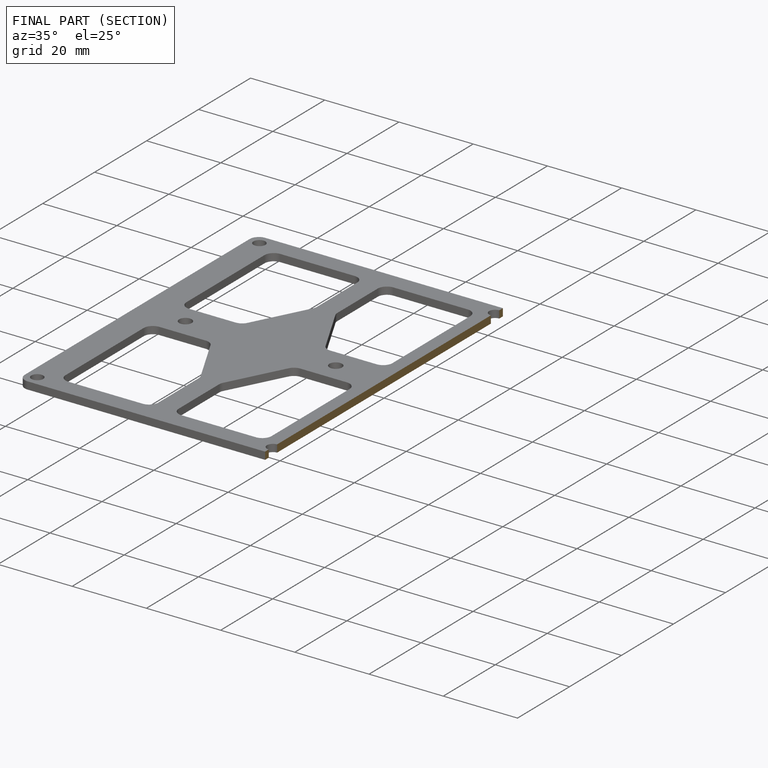
[diagram: finished part — half-section view (interior)]
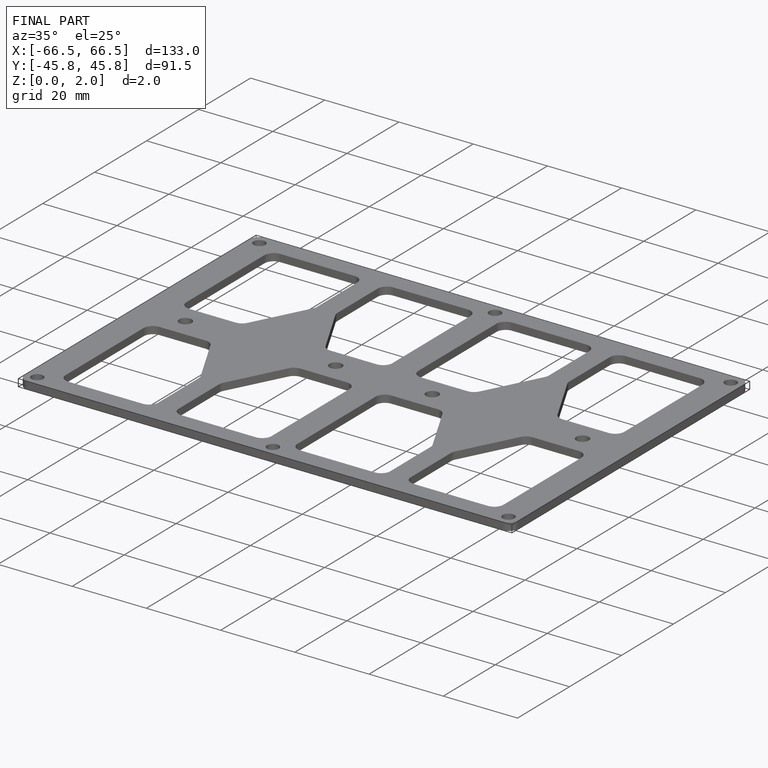
[diagram: finished part — iso view with bounding-box wireframe]
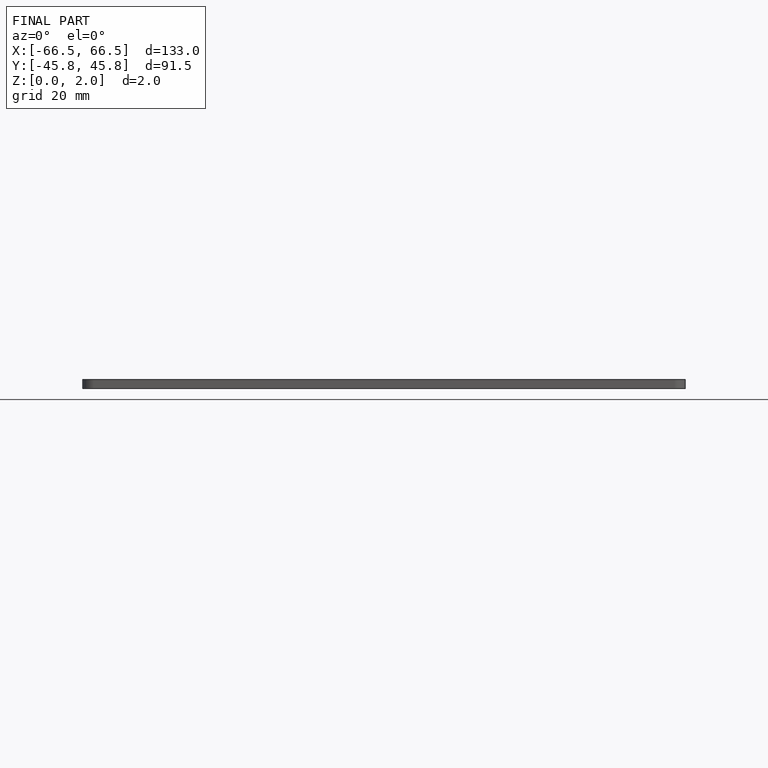
[diagram: finished part — front view with bounding-box wireframe]
